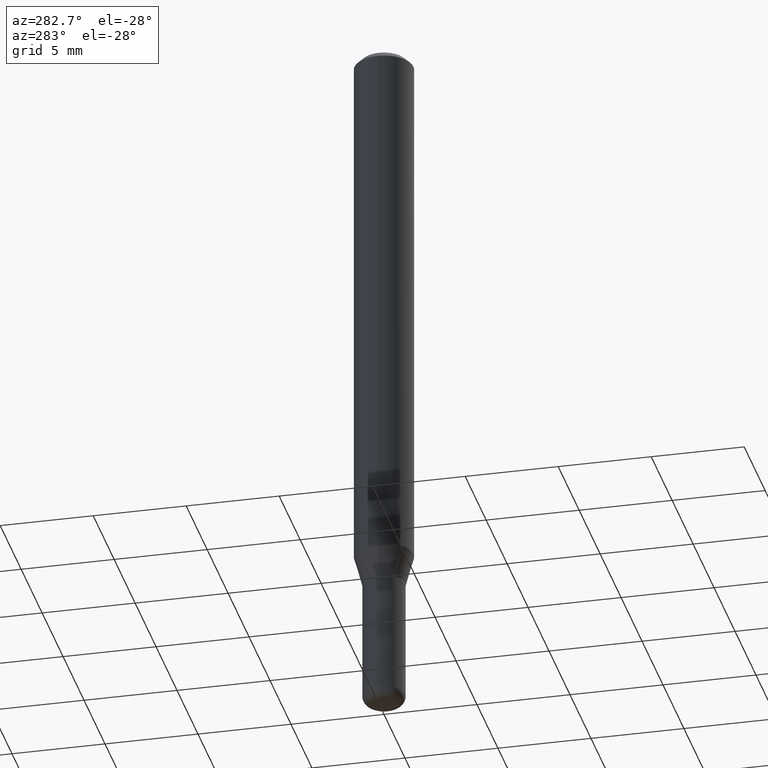
[diagram: clean part render]
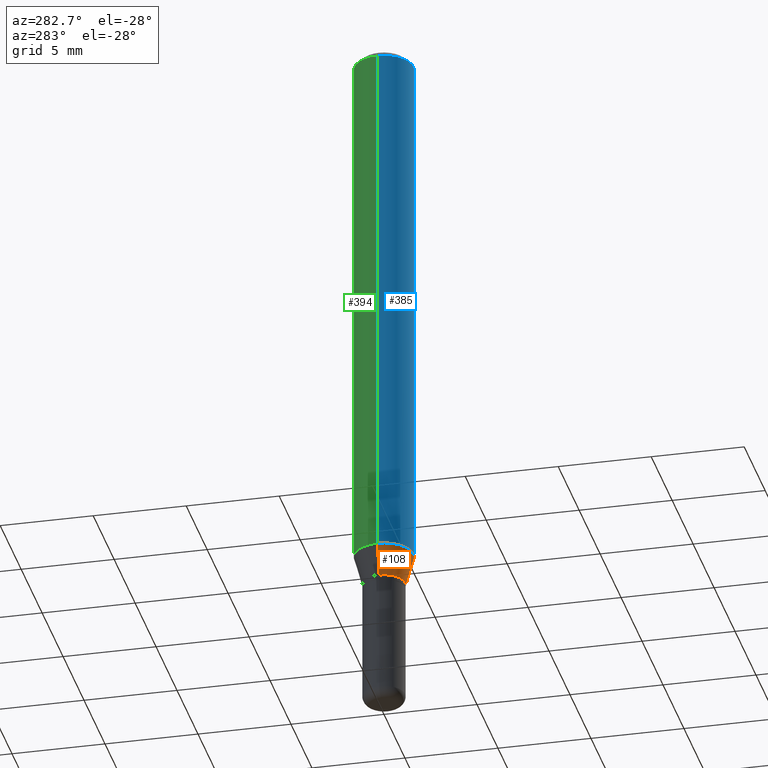
[diagram: same view with three faces highlighted in distinct colors, each labeled with its STEP entity id]
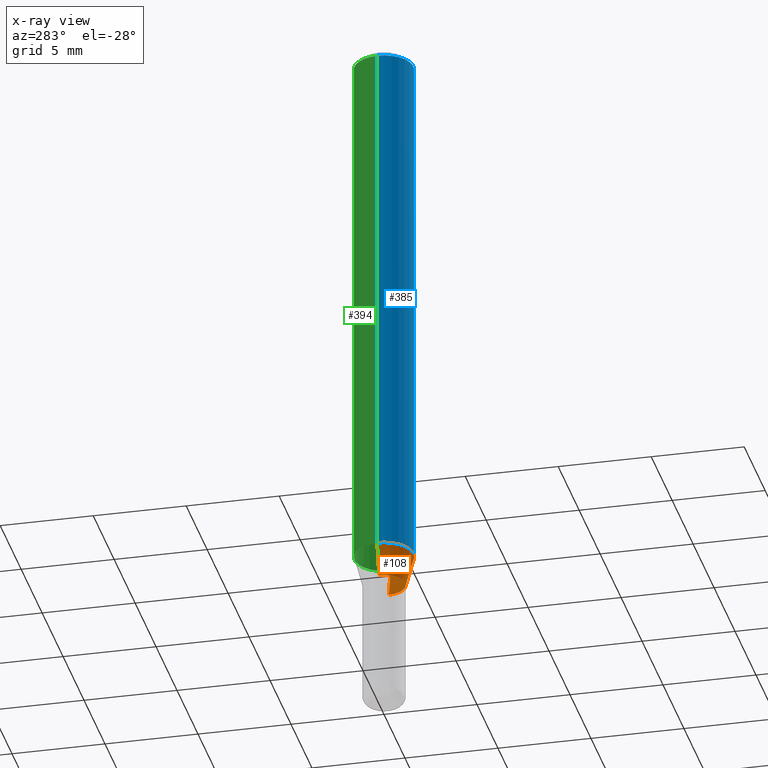
[diagram: x-ray of the same camera — body ghosted, the three highlighted faces saturated]
A machine part, auxiliary view with three faces highlighted in distinct colors.
The next image is the same camera in x-ray (body ghosted, the three faces saturated) — at least one of them is partly hidden behind the body in this view.
Their STEP definitions:

[orange] entity #108 — the highlighted conical surface has half-angle 15 deg.
#8 = VERTEX_POINT ( 'NONE', #484 ) ;
#44 = EDGE_LOOP ( 'NONE', ( #305, #115, #118, #405 ) ) ;
#45 = CARTESIAN_POINT ( 'NONE',  ( -0.04499999999999999833, -3.939863002296592945E-15, -1.220000000000000195 ) ) ;
#63 = CIRCLE ( 'NONE', #126, 0.06250000000000000000 ) ;
#65 = DIRECTION ( 'NONE',  ( -2.445468806185136597E-29, 3.491481338843145583E-15, 1.000000000000000000 ) ) ;
#72 = DIRECTION ( 'NONE',  ( -2.445468806185136597E-29, 3.491481338843145583E-15, 1.000000000000000000 ) ) ;
#76 = DIRECTION ( 'NONE',  ( -0.2588190451025206285, 5.211531920934544731E-15, 0.9659258262890682012 ) ) ;
#78 = AXIS2_PLACEMENT_3D ( 'NONE', #374, #65, #373 ) ;
#108 = ADVANCED_FACE ( 'NONE', ( #411 ), #486, .T. ) ;
#115 = ORIENTED_EDGE ( 'NONE', *, *, #168, .T. ) ;
#118 = ORIENTED_EDGE ( 'NONE', *, *, #427, .T. ) ;
#126 = AXIS2_PLACEMENT_3D ( 'NONE', #243, #249, #164 ) ;
#130 = VERTEX_POINT ( 'NONE', #177 ) ;
#134 = CIRCLE ( 'NONE', #303, 0.04499999999999999833 ) ;
#145 = CARTESIAN_POINT ( 'NONE',  ( 2.983471943545866670E-29, -4.259607233388637524E-15, -1.220000000000000195 ) ) ;
#149 = VECTOR ( 'NONE', #308, 39.37007874015748854 ) ;
#159 = CARTESIAN_POINT ( 'NONE',  ( 0.04499999999999999833, -4.573840553884519999E-15, -1.220000000000000195 ) ) ;
#164 = DIRECTION ( 'NONE',  ( 1.000000000000000000, -6.982962677686262766E-15, 0.000000000000000000 ) ) ;
#168 = EDGE_CURVE ( 'NONE', #130, #317, #134, .T. ) ;
#177 = CARTESIAN_POINT ( 'NONE',  ( -0.04499999999999999833, -3.763674637602973398E-15, -1.220000000000000195 ) ) ;
#223 = DIRECTION ( 'NONE',  ( 1.000000000000000000, -6.982962677686269077E-15, 0.000000000000000000 ) ) ;
#235 = VERTEX_POINT ( 'NONE', #336 ) ;
#243 = CARTESIAN_POINT ( 'NONE',  ( 2.823756201468231071E-29, -4.031575482759416467E-15, -1.154689110867544777 ) ) ;
#249 = DIRECTION ( 'NONE',  ( -2.445468806185136597E-29, 3.491481338843145583E-15, 1.000000000000000000 ) ) ;
#303 = AXIS2_PLACEMENT_3D ( 'NONE', #145, #72, #223 ) ;
#305 = ORIENTED_EDGE ( 'NONE', *, *, #378, .F. ) ;
#308 = DIRECTION ( 'NONE',  ( 0.2588190451025206285, 1.565188264969627095E-15, 0.9659258262890682012 ) ) ;
#317 = VERTEX_POINT ( 'NONE', #159 ) ;
#336 = CARTESIAN_POINT ( 'NONE',  ( 0.06250000000000000000, -4.468010650114807348E-15, -1.154689110867544777 ) ) ;
#369 = VECTOR ( 'NONE', #76, 39.37007874015748854 ) ;
#373 = DIRECTION ( 'NONE',  ( 1.000000000000000000, -6.982962677686269077E-15, 0.000000000000000000 ) ) ;
#374 = CARTESIAN_POINT ( 'NONE',  ( 2.983471943545866670E-29, -4.259607233388637524E-15, -1.220000000000000195 ) ) ;
#378 = EDGE_CURVE ( 'NONE', #130, #8, #391, .T. ) ;
#382 = LINE ( 'NONE', #469, #149 ) ;
#391 = LINE ( 'NONE', #45, #369 ) ;
#405 = ORIENTED_EDGE ( 'NONE', *, *, #453, .F. ) ;
#411 = FACE_OUTER_BOUND ( 'NONE', #44, .T. ) ;
#427 = EDGE_CURVE ( 'NONE', #317, #235, #382, .T. ) ;
#453 = EDGE_CURVE ( 'NONE', #8, #235, #63, .T. ) ;
#469 = CARTESIAN_POINT ( 'NONE',  ( 0.04499999999999999833, -4.573840553884519999E-15, -1.220000000000000195 ) ) ;
#484 = CARTESIAN_POINT ( 'NONE',  ( -0.06250000000000000000, -3.587486272909353851E-15, -1.154689110867544777 ) ) ;
#486 = CONICAL_SURFACE ( 'NONE', #78, 0.04499999999999999833, 0.2617993877991493523 ) ;

[blue] entity #385 — the highlighted cylindrical surface (edge-blend (fillet) strip) has radius 1.5875 mm, axis along (-0, 0, 1).
#8 = VERTEX_POINT ( 'NONE', #484 ) ;
#14 = CARTESIAN_POINT ( 'NONE',  ( -0.06250000000000000000, -1.597884641570968368E-15, -0.01499999999999970281 ) ) ;
#32 = DIRECTION ( 'NONE',  ( -2.445468806185136877E-29, 3.491481338843145188E-15, 1.000000000000000000 ) ) ;
#39 = ORIENTED_EDGE ( 'NONE', *, *, #453, .T. ) ;
#63 = CIRCLE ( 'NONE', #126, 0.06250000000000000000 ) ;
#66 = CARTESIAN_POINT ( 'NONE',  ( 0.06250000000000000000, -4.364351673553916694E-16, 3.047610484872459871E-30 ) ) ;
#126 = AXIS2_PLACEMENT_3D ( 'NONE', #243, #249, #164 ) ;
#146 = EDGE_CURVE ( 'NONE', #235, #237, #499, .T. ) ;
#164 = DIRECTION ( 'NONE',  ( 1.000000000000000000, -6.982962677686262766E-15, 0.000000000000000000 ) ) ;
#175 = DIRECTION ( 'NONE',  ( -2.445468806185136877E-29, 3.491481338843145188E-15, 1.000000000000000000 ) ) ;
#180 = EDGE_CURVE ( 'NONE', #518, #237, #361, .T. ) ;
#189 = VECTOR ( 'NONE', #32, 39.37007874015748143 ) ;
#217 = EDGE_CURVE ( 'NONE', #8, #518, #371, .T. ) ;
#222 = CARTESIAN_POINT ( 'NONE',  ( -0.06250000000000000000, 4.440892098500626162E-16, -3.074334431409316114E-30 ) ) ;
#229 = DIRECTION ( 'NONE',  ( 1.000000000000000000, -6.982962677686266711E-15, 4.876176775795935793E-29 ) ) ;
#235 = VERTEX_POINT ( 'NONE', #336 ) ;
#237 = VERTEX_POINT ( 'NONE', #334 ) ;
#243 = CARTESIAN_POINT ( 'NONE',  ( 2.823756201468231071E-29, -4.031575482759416467E-15, -1.154689110867544777 ) ) ;
#249 = DIRECTION ( 'NONE',  ( -2.445468806185136597E-29, 3.491481338843145583E-15, 1.000000000000000000 ) ) ;
#275 = AXIS2_PLACEMENT_3D ( 'NONE', #339, #420, #299 ) ;
#299 = DIRECTION ( 'NONE',  ( 1.000000000000000000, -6.982962677686266711E-15, 0.000000000000000000 ) ) ;
#306 = FACE_OUTER_BOUND ( 'NONE', #430, .T. ) ;
#315 = CYLINDRICAL_SURFACE ( 'NONE', #485, 0.06250000000000000000 ) ;
#334 = CARTESIAN_POINT ( 'NONE',  ( 0.06250000000000000000, -4.888073874380378612E-16, -0.01499999999999970281 ) ) ;
#336 = CARTESIAN_POINT ( 'NONE',  ( 0.06250000000000000000, -4.468010650114807348E-15, -1.154689110867544777 ) ) ;
#339 = CARTESIAN_POINT ( 'NONE',  ( 3.668203209277632395E-31, -5.237222008264614861E-17, -0.01499999999999970281 ) ) ;
#343 = DIRECTION ( 'NONE',  ( -2.445468806185136597E-29, 3.491481338843145583E-15, 1.000000000000000000 ) ) ;
#350 = ORIENTED_EDGE ( 'NONE', *, *, #180, .F. ) ;
#361 = CIRCLE ( 'NONE', #275, 0.06250000000000000000 ) ;
#371 = LINE ( 'NONE', #222, #460 ) ;
#385 = ADVANCED_FACE ( 'NONE', ( #306 ), #315, .T. ) ;
#390 = ORIENTED_EDGE ( 'NONE', *, *, #146, .T. ) ;
#420 = DIRECTION ( 'NONE',  ( -2.445468806185136597E-29, 3.491481338843145583E-15, 1.000000000000000000 ) ) ;
#429 = CARTESIAN_POINT ( 'NONE',  ( 0.000000000000000000, 0.000000000000000000, 0.000000000000000000 ) ) ;
#430 = EDGE_LOOP ( 'NONE', ( #489, #39, #390, #350 ) ) ;
#453 = EDGE_CURVE ( 'NONE', #8, #235, #63, .T. ) ;
#460 = VECTOR ( 'NONE', #175, 39.37007874015748143 ) ;
#484 = CARTESIAN_POINT ( 'NONE',  ( -0.06250000000000000000, -3.587486272909353851E-15, -1.154689110867544777 ) ) ;
#485 = AXIS2_PLACEMENT_3D ( 'NONE', #429, #343, #229 ) ;
#489 = ORIENTED_EDGE ( 'NONE', *, *, #217, .F. ) ;
#499 = LINE ( 'NONE', #66, #189 ) ;
#518 = VERTEX_POINT ( 'NONE', #14 ) ;

[green] entity #394 — the highlighted cylindrical surface (edge-blend (fillet) strip) has radius 1.5875 mm, axis along (-0, 0, 1).
#3 = EDGE_CURVE ( 'NONE', #237, #518, #12, .T. ) ;
#8 = VERTEX_POINT ( 'NONE', #484 ) ;
#12 = CIRCLE ( 'NONE', #337, 0.06250000000000000000 ) ;
#14 = CARTESIAN_POINT ( 'NONE',  ( -0.06250000000000000000, -1.597884641570968368E-15, -0.01499999999999970281 ) ) ;
#32 = DIRECTION ( 'NONE',  ( -2.445468806185136877E-29, 3.491481338843145188E-15, 1.000000000000000000 ) ) ;
#38 = DIRECTION ( 'NONE',  ( -2.445468806185136597E-29, 3.491481338843145583E-15, 1.000000000000000000 ) ) ;
#53 = ORIENTED_EDGE ( 'NONE', *, *, #3, .F. ) ;
#60 = ORIENTED_EDGE ( 'NONE', *, *, #217, .T. ) ;
#66 = CARTESIAN_POINT ( 'NONE',  ( 0.06250000000000000000, -4.364351673553916694E-16, 3.047610484872459871E-30 ) ) ;
#121 = DIRECTION ( 'NONE',  ( 1.000000000000000000, -6.982962677686266711E-15, 4.876176775795935793E-29 ) ) ;
#146 = EDGE_CURVE ( 'NONE', #235, #237, #499, .T. ) ;
#171 = CARTESIAN_POINT ( 'NONE',  ( 3.668203209277632395E-31, -5.237222008264614861E-17, -0.01499999999999970281 ) ) ;
#175 = DIRECTION ( 'NONE',  ( -2.445468806185136877E-29, 3.491481338843145188E-15, 1.000000000000000000 ) ) ;
#189 = VECTOR ( 'NONE', #32, 39.37007874015748143 ) ;
#207 = ORIENTED_EDGE ( 'NONE', *, *, #146, .F. ) ;
#217 = EDGE_CURVE ( 'NONE', #8, #518, #371, .T. ) ;
#222 = CARTESIAN_POINT ( 'NONE',  ( -0.06250000000000000000, 4.440892098500626162E-16, -3.074334431409316114E-30 ) ) ;
#225 = DIRECTION ( 'NONE',  ( -2.445468806185136597E-29, 3.491481338843145583E-15, 1.000000000000000000 ) ) ;
#235 = VERTEX_POINT ( 'NONE', #336 ) ;
#237 = VERTEX_POINT ( 'NONE', #334 ) ;
#265 = CARTESIAN_POINT ( 'NONE',  ( 2.823756201468231071E-29, -4.031575482759416467E-15, -1.154689110867544777 ) ) ;
#312 = AXIS2_PLACEMENT_3D ( 'NONE', #482, #38, #121 ) ;
#319 = DIRECTION ( 'NONE',  ( 1.000000000000000000, -6.982962677686266711E-15, 0.000000000000000000 ) ) ;
#322 = AXIS2_PLACEMENT_3D ( 'NONE', #265, #225, #434 ) ;
#326 = DIRECTION ( 'NONE',  ( -2.445468806185136597E-29, 3.491481338843145583E-15, 1.000000000000000000 ) ) ;
#333 = EDGE_CURVE ( 'NONE', #235, #8, #344, .T. ) ;
#334 = CARTESIAN_POINT ( 'NONE',  ( 0.06250000000000000000, -4.888073874380378612E-16, -0.01499999999999970281 ) ) ;
#336 = CARTESIAN_POINT ( 'NONE',  ( 0.06250000000000000000, -4.468010650114807348E-15, -1.154689110867544777 ) ) ;
#337 = AXIS2_PLACEMENT_3D ( 'NONE', #171, #326, #319 ) ;
#344 = CIRCLE ( 'NONE', #322, 0.06250000000000000000 ) ;
#352 = ORIENTED_EDGE ( 'NONE', *, *, #333, .T. ) ;
#371 = LINE ( 'NONE', #222, #460 ) ;
#381 = EDGE_LOOP ( 'NONE', ( #352, #60, #53, #207 ) ) ;
#394 = ADVANCED_FACE ( 'NONE', ( #517 ), #426, .T. ) ;
#426 = CYLINDRICAL_SURFACE ( 'NONE', #312, 0.06250000000000000000 ) ;
#434 = DIRECTION ( 'NONE',  ( 1.000000000000000000, -6.982962677686262766E-15, 0.000000000000000000 ) ) ;
#460 = VECTOR ( 'NONE', #175, 39.37007874015748143 ) ;
#482 = CARTESIAN_POINT ( 'NONE',  ( 0.000000000000000000, 0.000000000000000000, 0.000000000000000000 ) ) ;
#484 = CARTESIAN_POINT ( 'NONE',  ( -0.06250000000000000000, -3.587486272909353851E-15, -1.154689110867544777 ) ) ;
#499 = LINE ( 'NONE', #66, #189 ) ;
#517 = FACE_OUTER_BOUND ( 'NONE', #381, .T. ) ;
#518 = VERTEX_POINT ( 'NONE', #14 ) ;